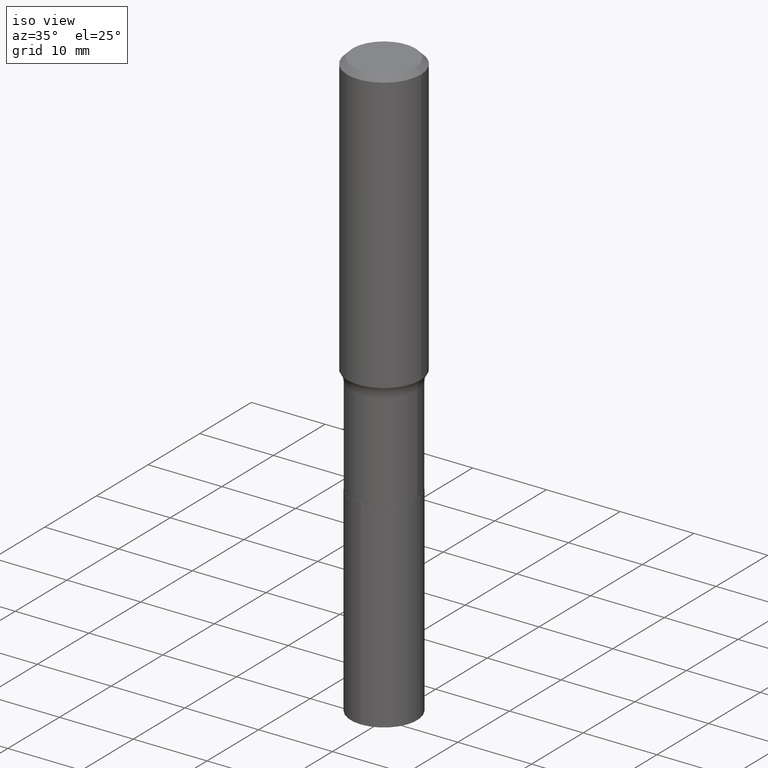
[diagram: clean part render]
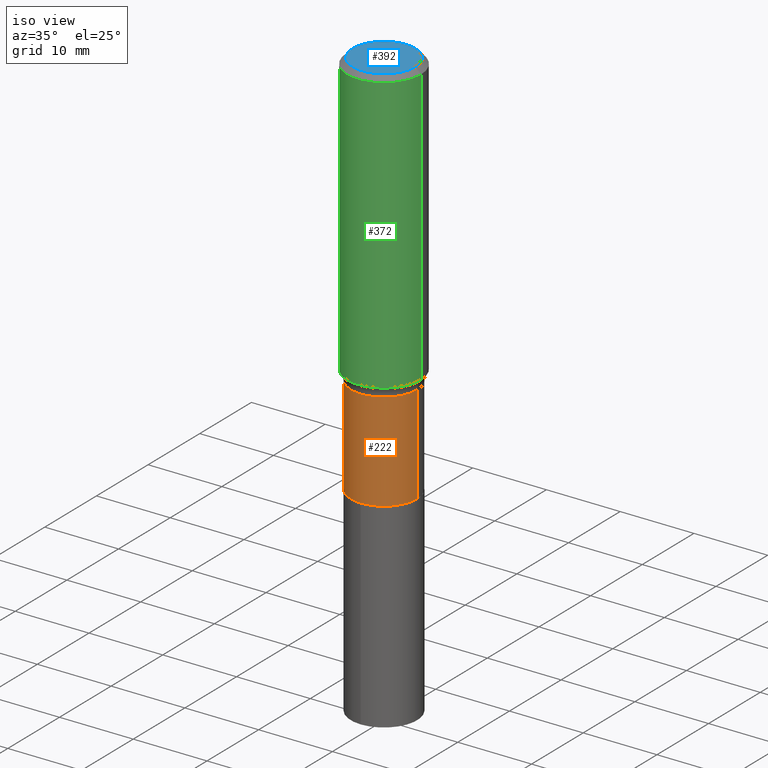
[diagram: same view with three faces highlighted in distinct colors, each labeled with its STEP entity id]
A machine part, iso view with three faces highlighted in distinct colors.
Their STEP definitions:

[orange] entity #222 — the highlighted cylindrical surface (partial cylindrical patch) has radius 4.4996 mm, axis along (-0, 0, 1).
#13 = DIRECTION ( 'NONE',  ( 1.000000000000000000, -6.982962677686266711E-15, 4.876176775795935793E-29 ) ) ;
#16 = VECTOR ( 'NONE', #292, 39.37007874015748143 ) ;
#26 = DIRECTION ( 'NONE',  ( 1.000000000000000000, -6.982962677686266711E-15, 0.000000000000000000 ) ) ;
#30 = DIRECTION ( 'NONE',  ( -2.445468806185136877E-29, 3.491481338843145188E-15, 1.000000000000000000 ) ) ;
#42 = DIRECTION ( 'NONE',  ( -2.445468806185136597E-29, 3.491481338843145583E-15, 1.000000000000000000 ) ) ;
#71 = EDGE_CURVE ( 'NONE', #277, #314, #216, .T. ) ;
#72 = CARTESIAN_POINT ( 'NONE',  ( 0.1771499999999999464, -6.668031060922634566E-15, -1.555500000000000105 ) ) ;
#77 = CARTESIAN_POINT ( 'NONE',  ( -0.1771500000000000019, -5.091579802688896127E-15, -2.082100000000000506 ) ) ;
#92 = AXIS2_PLACEMENT_3D ( 'NONE', #428, #102, #26 ) ;
#99 = LINE ( 'NONE', #151, #16 ) ;
#101 = EDGE_CURVE ( 'NONE', #446, #173, #99, .T. ) ;
#102 = DIRECTION ( 'NONE',  ( -2.445468806185136597E-29, 3.491481338843145583E-15, 1.000000000000000000 ) ) ;
#103 = EDGE_CURVE ( 'NONE', #277, #446, #289, .T. ) ;
#118 = CYLINDRICAL_SURFACE ( 'NONE', #290, 0.1771499999999999742 ) ;
#127 = ORIENTED_EDGE ( 'NONE', *, *, #302, .F. ) ;
#128 = CARTESIAN_POINT ( 'NONE',  ( 3.803926728020980075E-29, -5.430999222570513750E-15, -1.555500000000000105 ) ) ;
#151 = CARTESIAN_POINT ( 'NONE',  ( 0.1771499999999999742, -1.237031838352121999E-15, 8.638147158322498559E-30 ) ) ;
#166 = CARTESIAN_POINT ( 'NONE',  ( 0.000000000000000000, 0.000000000000000000, 0.000000000000000000 ) ) ;
#169 = DIRECTION ( 'NONE',  ( -2.445468806185136597E-29, 3.491481338843145583E-15, 1.000000000000000000 ) ) ;
#173 = VERTEX_POINT ( 'NONE', #72 ) ;
#188 = ORIENTED_EDGE ( 'NONE', *, *, #103, .T. ) ;
#211 = ORIENTED_EDGE ( 'NONE', *, *, #71, .F. ) ;
#216 = LINE ( 'NONE', #331, #321 ) ;
#222 = ADVANCED_FACE ( 'NONE', ( #405 ), #118, .T. ) ;
#260 = CIRCLE ( 'NONE', #279, 0.1771499999999999464 ) ;
#277 = VERTEX_POINT ( 'NONE', #77 ) ;
#279 = AXIS2_PLACEMENT_3D ( 'NONE', #128, #42, #409 ) ;
#289 = CIRCLE ( 'NONE', #92, 0.1771500000000000019 ) ;
#290 = AXIS2_PLACEMENT_3D ( 'NONE', #166, #169, #13 ) ;
#292 = DIRECTION ( 'NONE',  ( -2.445468806185136877E-29, 3.491481338843145188E-15, 1.000000000000000000 ) ) ;
#302 = EDGE_CURVE ( 'NONE', #314, #173, #260, .T. ) ;
#314 = VERTEX_POINT ( 'NONE', #315 ) ;
#315 = CARTESIAN_POINT ( 'NONE',  ( -0.1771499999999999464, -5.091579802688896916E-15, -1.555500000000000105 ) ) ;
#321 = VECTOR ( 'NONE', #30, 39.37007874015748143 ) ;
#326 = ORIENTED_EDGE ( 'NONE', *, *, #101, .T. ) ;
#331 = CARTESIAN_POINT ( 'NONE',  ( -0.1771499999999999742, 1.258726456399017296E-15, -8.713893512386563924E-30 ) ) ;
#405 = FACE_OUTER_BOUND ( 'NONE', #439, .T. ) ;
#409 = DIRECTION ( 'NONE',  ( 1.000000000000000000, -6.982962677686263555E-15, 0.000000000000000000 ) ) ;
#426 = CARTESIAN_POINT ( 'NONE',  ( 0.1771500000000000019, -8.506645133957437067E-15, -2.082100000000000506 ) ) ;
#428 = CARTESIAN_POINT ( 'NONE',  ( 5.091710601358074426E-29, -7.269613295605314673E-15, -2.082100000000000506 ) ) ;
#439 = EDGE_LOOP ( 'NONE', ( #211, #188, #326, #127 ) ) ;
#446 = VERTEX_POINT ( 'NONE', #426 ) ;

[blue] entity #392 — the highlighted planar face has unit normal (0, -0, -1).
#1 = CIRCLE ( 'NONE', #130, 0.1673224999999999851 ) ;
#6 = DIRECTION ( 'NONE',  ( 1.000000000000000000, -6.982962677686267499E-15, 4.876294436782262290E-29 ) ) ;
#15 = CARTESIAN_POINT ( 'NONE',  ( -5.008488096090108951E-47, 7.150793614331948590E-33, 2.048068690724054183E-18 ) ) ;
#63 = CARTESIAN_POINT ( 'NONE',  ( 0.1673224999999999851, -1.300749711163072397E-15, 4.096137381456741925E-18 ) ) ;
#65 = FACE_OUTER_BOUND ( 'NONE', #220, .T. ) ;
#90 = ORIENTED_EDGE ( 'NONE', *, *, #379, .T. ) ;
#120 = VERTEX_POINT ( 'NONE', #63 ) ;
#130 = AXIS2_PLACEMENT_3D ( 'NONE', #253, #221, #364 ) ;
#220 = EDGE_LOOP ( 'NONE', ( #323, #90 ) ) ;
#221 = DIRECTION ( 'NONE',  ( -2.445468806185136597E-29, 3.491481338843145583E-15, 1.000000000000000000 ) ) ;
#232 = DIRECTION ( 'NONE',  ( -2.445468806185136597E-29, 3.491481338843145583E-15, 1.000000000000000000 ) ) ;
#233 = AXIS2_PLACEMENT_3D ( 'NONE', #447, #232, #6 ) ;
#235 = CARTESIAN_POINT ( 'NONE',  ( -0.1673224999999999851, 1.219954130253505263E-15, 4.096137381439757534E-18 ) ) ;
#253 = CARTESIAN_POINT ( 'NONE',  ( -1.001697619218021790E-46, 1.430158722866389718E-32, 4.096137381448108366E-18 ) ) ;
#294 = DIRECTION ( 'NONE',  ( 2.438088387897960049E-29, -3.491481338843145188E-15, -1.000000000000000000 ) ) ;
#297 = EDGE_CURVE ( 'NONE', #355, #120, #456, .T. ) ;
#323 = ORIENTED_EDGE ( 'NONE', *, *, #297, .T. ) ;
#355 = VERTEX_POINT ( 'NONE', #235 ) ;
#364 = DIRECTION ( 'NONE',  ( 1.000000000000000000, -6.982962677686267499E-15, 4.876294436782262290E-29 ) ) ;
#379 = EDGE_CURVE ( 'NONE', #120, #355, #1, .T. ) ;
#392 = ADVANCED_FACE ( 'NONE', ( #65 ), #424, .F. ) ;
#406 = AXIS2_PLACEMENT_3D ( 'NONE', #15, #294, #416 ) ;
#416 = DIRECTION ( 'NONE',  ( -1.000000000000000000, 6.982962677686265922E-15, -4.876176775795935793E-29 ) ) ;
#424 = PLANE ( 'NONE',  #406 ) ;
#447 = CARTESIAN_POINT ( 'NONE',  ( -1.001697619218021790E-46, 1.430158722866389718E-32, 4.096137381448108366E-18 ) ) ;
#456 = CIRCLE ( 'NONE', #233, 0.1673224999999999851 ) ;

[green] entity #372 — the highlighted cylindrical surface (partial cylindrical patch) has radius 5 mm, axis along (-0, 0, 1).
#11 = VERTEX_POINT ( 'NONE', #175 ) ;
#17 = AXIS2_PLACEMENT_3D ( 'NONE', #227, #376, #79 ) ;
#41 = DIRECTION ( 'NONE',  ( -2.445468806185136877E-29, 3.491481338843145188E-15, 1.000000000000000000 ) ) ;
#43 = CARTESIAN_POINT ( 'NONE',  ( -0.1968500000000001915, -3.848738541785168331E-15, -1.502927098234926984 ) ) ;
#64 = DIRECTION ( 'NONE',  ( -2.445468806185136597E-29, 3.491481338843145583E-15, 1.000000000000000000 ) ) ;
#68 = LINE ( 'NONE', #194, #270 ) ;
#75 = CIRCLE ( 'NONE', #351, 0.1968500000000001915 ) ;
#79 = DIRECTION ( 'NONE',  ( 1.000000000000000000, -6.982962677686265922E-15, 0.000000000000000000 ) ) ;
#97 = CARTESIAN_POINT ( 'NONE',  ( -0.1968500000000000250, -1.276564940837051115E-15, -0.02952750000000016820 ) ) ;
#111 = CIRCLE ( 'NONE', #17, 0.1968500000000000250 ) ;
#121 = LINE ( 'NONE', #162, #197 ) ;
#122 = VERTEX_POINT ( 'NONE', #465 ) ;
#126 = EDGE_CURVE ( 'NONE', #212, #122, #75, .T. ) ;
#133 = ORIENTED_EDGE ( 'NONE', *, *, #252, .T. ) ;
#134 = CYLINDRICAL_SURFACE ( 'NONE', #215, 0.1968500000000001082 ) ;
#150 = ORIENTED_EDGE ( 'NONE', *, *, #325, .F. ) ;
#162 = CARTESIAN_POINT ( 'NONE',  ( 0.1968500000000001082, -1.374596203102542397E-15, 9.598753983154305062E-30 ) ) ;
#175 = CARTESIAN_POINT ( 'NONE',  ( 0.1968500000000000250, -1.477690918335233294E-15, -0.02952750000000016820 ) ) ;
#177 = DIRECTION ( 'NONE',  ( -2.445468806185136597E-29, 3.491481338843145583E-15, 1.000000000000000000 ) ) ;
#193 = DIRECTION ( 'NONE',  ( 1.000000000000000000, -6.982962677686266711E-15, 0.000000000000000000 ) ) ;
#194 = CARTESIAN_POINT ( 'NONE',  ( -0.1968500000000001082, 1.398703375343757985E-15, -9.682923725166787881E-30 ) ) ;
#197 = VECTOR ( 'NONE', #41, 39.37007874015748143 ) ;
#198 = EDGE_CURVE ( 'NONE', #212, #463, #68, .T. ) ;
#212 = VERTEX_POINT ( 'NONE', #43 ) ;
#215 = AXIS2_PLACEMENT_3D ( 'NONE', #458, #177, #431 ) ;
#227 = CARTESIAN_POINT ( 'NONE',  ( 7.220858017463203355E-31, -1.030947152326915746E-16, -0.02952750000000016820 ) ) ;
#252 = EDGE_CURVE ( 'NONE', #122, #11, #121, .T. ) ;
#264 = EDGE_LOOP ( 'NONE', ( #377, #393, #133, #150 ) ) ;
#270 = VECTOR ( 'NONE', #339, 39.37007874015748143 ) ;
#325 = EDGE_CURVE ( 'NONE', #463, #11, #111, .T. ) ;
#339 = DIRECTION ( 'NONE',  ( -2.445468806185136877E-29, 3.491481338843145188E-15, 1.000000000000000000 ) ) ;
#351 = AXIS2_PLACEMENT_3D ( 'NONE', #430, #64, #193 ) ;
#372 = ADVANCED_FACE ( 'NONE', ( #461 ), #134, .T. ) ;
#376 = DIRECTION ( 'NONE',  ( -2.445468806185136597E-29, 3.491481338843145583E-15, 1.000000000000000000 ) ) ;
#377 = ORIENTED_EDGE ( 'NONE', *, *, #198, .F. ) ;
#393 = ORIENTED_EDGE ( 'NONE', *, *, #126, .T. ) ;
#430 = CARTESIAN_POINT ( 'NONE',  ( 3.675361336703858371E-29, -5.247441917128926908E-15, -1.502927098234926984 ) ) ;
#431 = DIRECTION ( 'NONE',  ( 1.000000000000000000, -6.982962677686266711E-15, 4.876176775795935793E-29 ) ) ;
#458 = CARTESIAN_POINT ( 'NONE',  ( 0.000000000000000000, 0.000000000000000000, 0.000000000000000000 ) ) ;
#461 = FACE_OUTER_BOUND ( 'NONE', #264, .T. ) ;
#463 = VERTEX_POINT ( 'NONE', #97 ) ;
#465 = CARTESIAN_POINT ( 'NONE',  ( 0.1968500000000001915, -6.622038120231470094E-15, -1.502927098234926984 ) ) ;